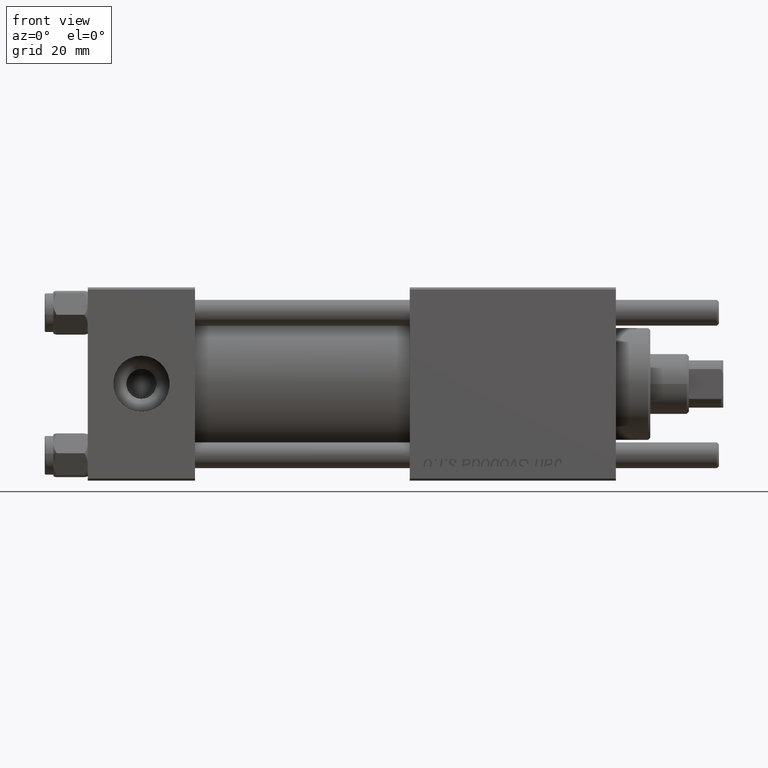
[diagram: clean part render]
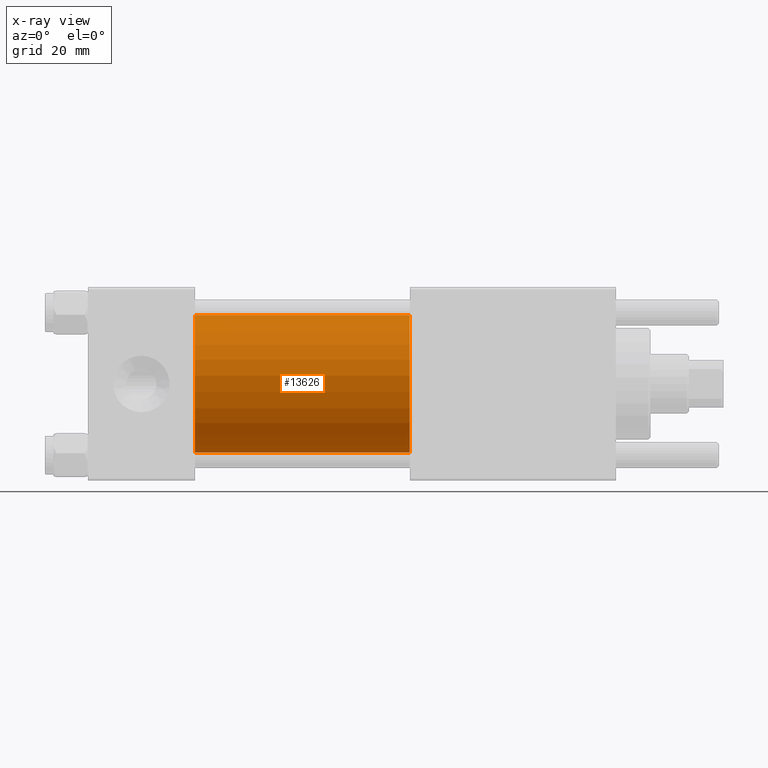
[diagram: x-ray — body ghosted, one internal face saturated and labeled with its STEP entity id]
A machine part, front view, then the same camera in x-ray: the body is ghosted and one INTERNAL B-rep face — a face not visible from any outside direction — is saturated and labeled: STEP entity #13626.
In plain terms, the highlighted cylindrical surface (partial cylindrical patch) has radius 16 mm, axis along (-1, -0, -0).
Its self-contained STEP definition (entity closure, byte-faithful):
#225 = VERTEX_POINT ( 'NONE', #26552 ) ;
#1315 = DIRECTION ( 'NONE',  ( -1.000000000000000000, -0.000000000000000000, -0.000000000000000000 ) ) ;
#2397 = ORIENTED_EDGE ( 'NONE', *, *, #51097, .F. ) ;
#3864 = ORIENTED_EDGE ( 'NONE', *, *, #14017, .F. ) ;
#4496 = DIRECTION ( 'NONE',  ( -1.000000000000000000, -0.000000000000000000, -0.000000000000000000 ) ) ;
#6386 = AXIS2_PLACEMENT_3D ( 'NONE', #9638, #1315, #45368 ) ;
#6654 = ORIENTED_EDGE ( 'NONE', *, *, #45978, .T. ) ;
#7077 = DIRECTION ( 'NONE',  ( 1.000000000000000000, 0.000000000000000000, 0.000000000000000000 ) ) ;
#9622 = CARTESIAN_POINT ( 'NONE',  ( 75.00000000000001421, -2.602085213965210642E-15, 16.00000000000000000 ) ) ;
#9638 = CARTESIAN_POINT ( 'NONE',  ( 75.00000000000001421, -2.602085213965210642E-15, 0.000000000000000000 ) ) ;
#9909 = CIRCLE ( 'NONE', #29254, 16.00000000000000000 ) ;
#13626 = ADVANCED_FACE ( 'NONE', ( #36141 ), #26931, .F. ) ;
#13693 = CARTESIAN_POINT ( 'NONE',  ( 75.00000000000001421, -6.426503353294456087E-16, -16.00000000000000000 ) ) ;
#13953 = DIRECTION ( 'NONE',  ( -1.000000000000000000, -0.000000000000000000, -0.000000000000000000 ) ) ;
#14017 = EDGE_CURVE ( 'NONE', #34699, #31720, #32118, .T. ) ;
#14302 = EDGE_CURVE ( 'NONE', #225, #31720, #43395, .T. ) ;
#17366 = EDGE_LOOP ( 'NONE', ( #6654, #19645, #3864, #2397 ) ) ;
#17400 = CARTESIAN_POINT ( 'NONE',  ( 75.00000000000001421, -2.602085213965210642E-15, 16.00000000000000000 ) ) ;
#17448 = VECTOR ( 'NONE', #13953, 1000.000000000000000 ) ;
#19645 = ORIENTED_EDGE ( 'NONE', *, *, #14302, .T. ) ;
#21124 = AXIS2_PLACEMENT_3D ( 'NONE', #29926, #55269, #47491 ) ;
#26552 = CARTESIAN_POINT ( 'NONE',  ( 75.00000000000001421, -6.426503353294456087E-16, -16.00000000000000000 ) ) ;
#26931 = CYLINDRICAL_SURFACE ( 'NONE', #6386, 16.00000000000000000 ) ;
#27989 = VERTEX_POINT ( 'NONE', #17400 ) ;
#29254 = AXIS2_PLACEMENT_3D ( 'NONE', #41653, #7077, #38468 ) ;
#29380 = VECTOR ( 'NONE', #4496, 1000.000000000000000 ) ;
#29926 = CARTESIAN_POINT ( 'NONE',  ( 25.00000000000000000, -2.602085213965210642E-15, 0.000000000000000000 ) ) ;
#30630 = CARTESIAN_POINT ( 'NONE',  ( 25.00000000000000000, -6.426503353294456087E-16, -16.00000000000000000 ) ) ;
#31720 = VERTEX_POINT ( 'NONE', #30630 ) ;
#32118 = CIRCLE ( 'NONE', #21124, 16.00000000000000000 ) ;
#34126 = CARTESIAN_POINT ( 'NONE',  ( 25.00000000000000000, -2.602085213965210642E-15, 16.00000000000000000 ) ) ;
#34699 = VERTEX_POINT ( 'NONE', #34126 ) ;
#36141 = FACE_OUTER_BOUND ( 'NONE', #17366, .T. ) ;
#38468 = DIRECTION ( 'NONE',  ( 0.000000000000000000, 0.000000000000000000, -1.000000000000000000 ) ) ;
#39878 = LINE ( 'NONE', #9622, #17448 ) ;
#41653 = CARTESIAN_POINT ( 'NONE',  ( 75.00000000000001421, -2.602085213965210642E-15, 0.000000000000000000 ) ) ;
#43395 = LINE ( 'NONE', #13693, #29380 ) ;
#45368 = DIRECTION ( 'NONE',  ( 0.000000000000000000, 0.000000000000000000, 1.000000000000000000 ) ) ;
#45978 = EDGE_CURVE ( 'NONE', #27989, #225, #9909, .T. ) ;
#47491 = DIRECTION ( 'NONE',  ( 0.000000000000000000, 0.000000000000000000, -1.000000000000000000 ) ) ;
#51097 = EDGE_CURVE ( 'NONE', #27989, #34699, #39878, .T. ) ;
#55269 = DIRECTION ( 'NONE',  ( 1.000000000000000000, 0.000000000000000000, 0.000000000000000000 ) ) ;